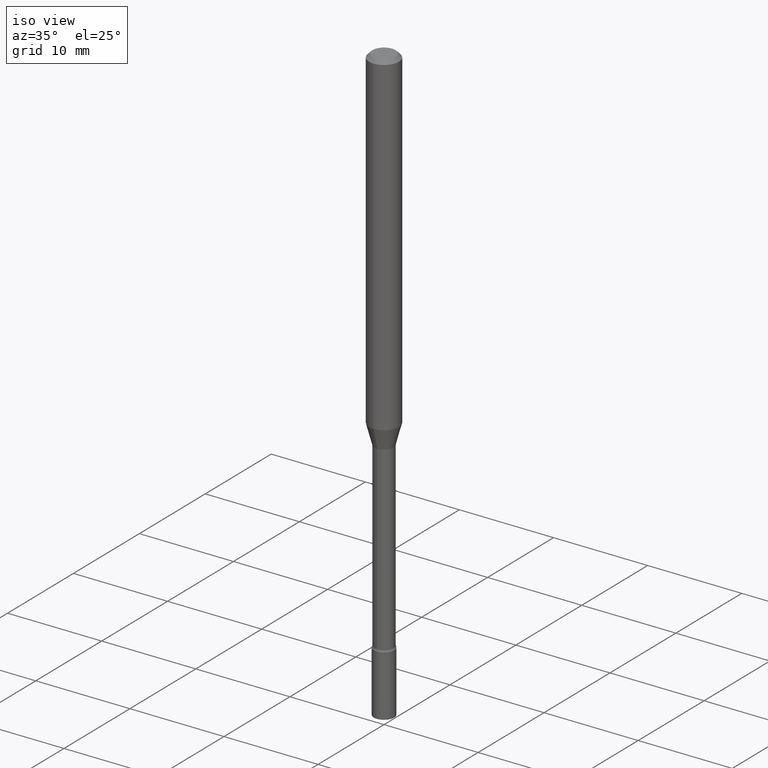
[diagram: clean part render]
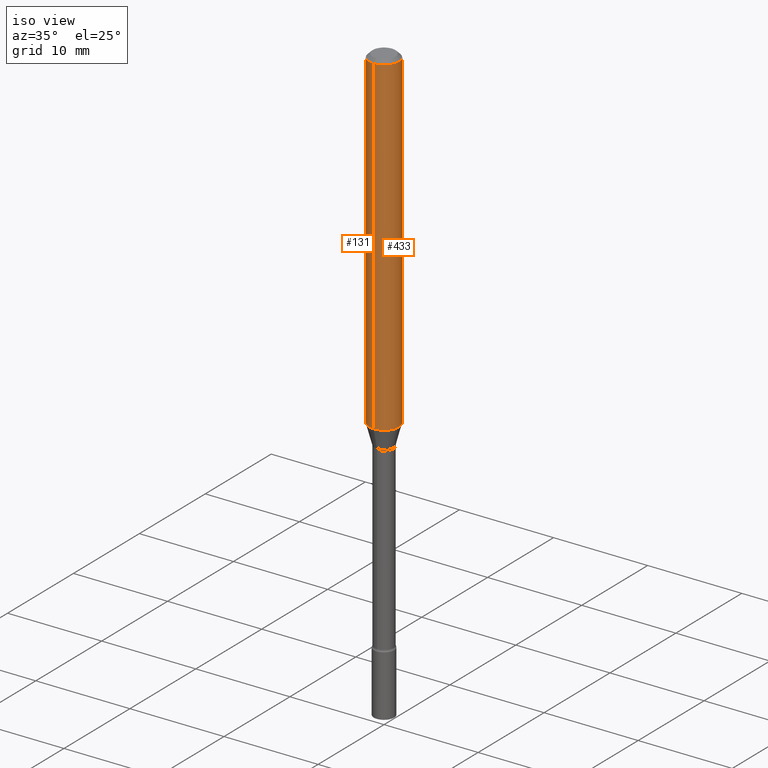
[diagram: same view with one multi-face feature highlighted, each face labeled with its STEP entity id]
A machine part, iso view. The highlighted faces form ONE feature: a constant-radius fillet chain: 2 tangent blend faces with common blend radius 1.5875 mm. The faces share edges in the B-rep.
Their STEP definitions:
[1] entity #131 (Cylinder):
#3 = CARTESIAN_POINT ( 'NONE',  ( 0.000000000000000000, 0.000000000000000000, 0.000000000000000000 ) ) ;
#33 = FACE_OUTER_BOUND ( 'NONE', #208, .T. ) ;
#58 = DIRECTION ( 'NONE',  ( -2.445431924933629508E-29, 3.491534154894454158E-15, 1.000000000000000000 ) ) ;
#91 = EDGE_CURVE ( 'NONE', #280, #169, #384, .T. ) ;
#128 = ORIENTED_EDGE ( 'NONE', *, *, #400, .T. ) ;
#130 = VERTEX_POINT ( 'NONE', #472 ) ;
#131 = ADVANCED_FACE ( 'NONE', ( #33 ), #391, .T. ) ;
#135 = AXIS2_PLACEMENT_3D ( 'NONE', #337, #194, #312 ) ;
#140 = ORIENTED_EDGE ( 'NONE', *, *, #91, .F. ) ;
#154 = CARTESIAN_POINT ( 'NONE',  ( 4.440892098500969316E-16, 0.06249999999999993755, -0.01500000000000024751 ) ) ;
#164 = CARTESIAN_POINT ( 'NONE',  ( -4.364351673553912750E-16, -0.06250000000000005551, -0.01499999999999981209 ) ) ;
#169 = VERTEX_POINT ( 'NONE', #164 ) ;
#177 = CARTESIAN_POINT ( 'NONE',  ( 3.668147887400451129E-31, -5.237301232341692009E-17, -0.01500000000000003067 ) ) ;
#185 = LINE ( 'NONE', #505, #403 ) ;
#194 = DIRECTION ( 'NONE',  ( -2.445431924933629508E-29, 3.491534154894454158E-15, 1.000000000000000000 ) ) ;
#198 = DIRECTION ( 'NONE',  ( -6.982962677686265922E-15, -1.000000000000000000, 3.491534154894454158E-15 ) ) ;
#208 = EDGE_LOOP ( 'NONE', ( #213, #367, #128, #140 ) ) ;
#213 = ORIENTED_EDGE ( 'NONE', *, *, #249, .F. ) ;
#218 = DIRECTION ( 'NONE',  ( -6.982962677686265922E-15, -1.000000000000000000, 3.483106191921935554E-15 ) ) ;
#249 = EDGE_CURVE ( 'NONE', #130, #280, #306, .T. ) ;
#280 = VERTEX_POINT ( 'NONE', #154 ) ;
#306 = LINE ( 'NONE', #503, #445 ) ;
#312 = DIRECTION ( 'NONE',  ( -6.982962677686265922E-15, -1.000000000000000000, 4.370956789862821150E-15 ) ) ;
#337 = CARTESIAN_POINT ( 'NONE',  ( 3.413437210810433507E-29, -4.873630905696038116E-15, -1.395842254289322071 ) ) ;
#341 = DIRECTION ( 'NONE',  ( -2.445431924933629508E-29, 3.491534154894454552E-15, 1.000000000000000000 ) ) ;
#357 = AXIS2_PLACEMENT_3D ( 'NONE', #177, #58, #218 ) ;
#367 = ORIENTED_EDGE ( 'NONE', *, *, #449, .T. ) ;
#384 = CIRCLE ( 'NONE', #357, 0.06250000000000000000 ) ;
#388 = DIRECTION ( 'NONE',  ( -2.445431924933629508E-29, 3.491534154894454158E-15, 1.000000000000000000 ) ) ;
#391 = CYLINDRICAL_SURFACE ( 'NONE', #466, 0.06250000000000000000 ) ;
#396 = CARTESIAN_POINT ( 'NONE',  ( -4.364351673553572060E-16, -0.06250000000000484335, -1.395842254289321849 ) ) ;
#400 = EDGE_CURVE ( 'NONE', #411, #169, #185, .T. ) ;
#403 = VECTOR ( 'NONE', #341, 39.37007874015748143 ) ;
#411 = VERTEX_POINT ( 'NONE', #396 ) ;
#421 = CIRCLE ( 'NONE', #135, 0.06250000000000000000 ) ;
#445 = VECTOR ( 'NONE', #512, 39.37007874015748143 ) ;
#449 = EDGE_CURVE ( 'NONE', #130, #411, #421, .T. ) ;
#466 = AXIS2_PLACEMENT_3D ( 'NONE', #3, #388, #198 ) ;
#472 = CARTESIAN_POINT ( 'NONE',  ( 4.440892098500969316E-16, 0.06249999999999515665, -1.395842254289322293 ) ) ;
#503 = CARTESIAN_POINT ( 'NONE',  ( 4.440892098500625669E-16, 0.06250000000000000000, -2.182208846809033848E-16 ) ) ;
#505 = CARTESIAN_POINT ( 'NONE',  ( -4.364351673553916201E-16, -0.06250000000000000000, 2.182208846809033848E-16 ) ) ;
#512 = DIRECTION ( 'NONE',  ( -2.445431924933629508E-29, 3.491534154894454552E-15, 1.000000000000000000 ) ) ;
[2] entity #433 (Cylinder):
#17 = EDGE_LOOP ( 'NONE', ( #435, #60, #416, #487 ) ) ;
#26 = DIRECTION ( 'NONE',  ( -2.445431924933629508E-29, 3.491534154894454158E-15, 1.000000000000000000 ) ) ;
#36 = DIRECTION ( 'NONE',  ( -2.445431924933629508E-29, 3.491534154894454158E-15, 1.000000000000000000 ) ) ;
#60 = ORIENTED_EDGE ( 'NONE', *, *, #249, .T. ) ;
#90 = AXIS2_PLACEMENT_3D ( 'NONE', #469, #36, #296 ) ;
#126 = CIRCLE ( 'NONE', #90, 0.06250000000000000000 ) ;
#130 = VERTEX_POINT ( 'NONE', #472 ) ;
#154 = CARTESIAN_POINT ( 'NONE',  ( 4.440892098500969316E-16, 0.06249999999999993755, -0.01500000000000024751 ) ) ;
#164 = CARTESIAN_POINT ( 'NONE',  ( -4.364351673553912750E-16, -0.06250000000000005551, -0.01499999999999981209 ) ) ;
#169 = VERTEX_POINT ( 'NONE', #164 ) ;
#184 = CYLINDRICAL_SURFACE ( 'NONE', #413, 0.06250000000000000000 ) ;
#185 = LINE ( 'NONE', #505, #403 ) ;
#247 = EDGE_CURVE ( 'NONE', #411, #130, #126, .T. ) ;
#249 = EDGE_CURVE ( 'NONE', #130, #280, #306, .T. ) ;
#264 = CARTESIAN_POINT ( 'NONE',  ( 0.000000000000000000, 0.000000000000000000, 0.000000000000000000 ) ) ;
#267 = DIRECTION ( 'NONE',  ( -2.445431924933629508E-29, 3.491534154894454158E-15, 1.000000000000000000 ) ) ;
#280 = VERTEX_POINT ( 'NONE', #154 ) ;
#296 = DIRECTION ( 'NONE',  ( -6.982962677686265922E-15, -1.000000000000000000, 4.370956789862821150E-15 ) ) ;
#306 = LINE ( 'NONE', #503, #445 ) ;
#334 = CIRCLE ( 'NONE', #393, 0.06250000000000000000 ) ;
#341 = DIRECTION ( 'NONE',  ( -2.445431924933629508E-29, 3.491534154894454552E-15, 1.000000000000000000 ) ) ;
#349 = DIRECTION ( 'NONE',  ( -6.982962677686265922E-15, -1.000000000000000000, 3.491534154894454158E-15 ) ) ;
#379 = CARTESIAN_POINT ( 'NONE',  ( 3.668147887400451129E-31, -5.237301232341692009E-17, -0.01500000000000003067 ) ) ;
#393 = AXIS2_PLACEMENT_3D ( 'NONE', #379, #26, #464 ) ;
#394 = EDGE_CURVE ( 'NONE', #169, #280, #334, .T. ) ;
#396 = CARTESIAN_POINT ( 'NONE',  ( -4.364351673553572060E-16, -0.06250000000000484335, -1.395842254289321849 ) ) ;
#400 = EDGE_CURVE ( 'NONE', #411, #169, #185, .T. ) ;
#403 = VECTOR ( 'NONE', #341, 39.37007874015748143 ) ;
#411 = VERTEX_POINT ( 'NONE', #396 ) ;
#413 = AXIS2_PLACEMENT_3D ( 'NONE', #264, #267, #349 ) ;
#416 = ORIENTED_EDGE ( 'NONE', *, *, #394, .F. ) ;
#433 = ADVANCED_FACE ( 'NONE', ( #473 ), #184, .T. ) ;
#435 = ORIENTED_EDGE ( 'NONE', *, *, #247, .T. ) ;
#445 = VECTOR ( 'NONE', #512, 39.37007874015748143 ) ;
#464 = DIRECTION ( 'NONE',  ( -6.982962677686265922E-15, -1.000000000000000000, 3.483106191921935554E-15 ) ) ;
#469 = CARTESIAN_POINT ( 'NONE',  ( 3.413437210810433507E-29, -4.873630905696038116E-15, -1.395842254289322071 ) ) ;
#472 = CARTESIAN_POINT ( 'NONE',  ( 4.440892098500969316E-16, 0.06249999999999515665, -1.395842254289322293 ) ) ;
#473 = FACE_OUTER_BOUND ( 'NONE', #17, .T. ) ;
#487 = ORIENTED_EDGE ( 'NONE', *, *, #400, .F. ) ;
#503 = CARTESIAN_POINT ( 'NONE',  ( 4.440892098500625669E-16, 0.06250000000000000000, -2.182208846809033848E-16 ) ) ;
#505 = CARTESIAN_POINT ( 'NONE',  ( -4.364351673553916201E-16, -0.06250000000000000000, 2.182208846809033848E-16 ) ) ;
#512 = DIRECTION ( 'NONE',  ( -2.445431924933629508E-29, 3.491534154894454552E-15, 1.000000000000000000 ) ) ;